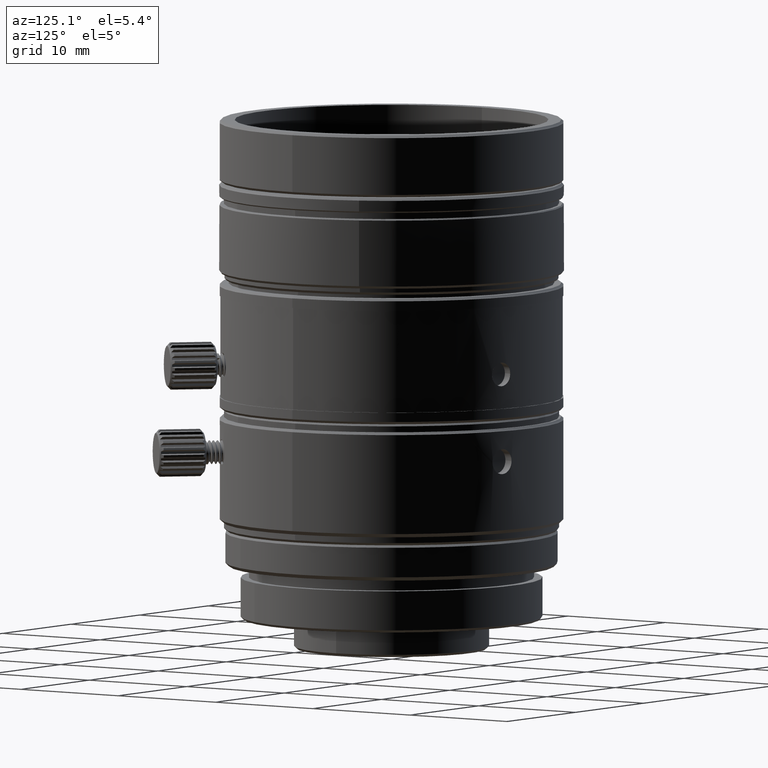
[diagram: clean part render]
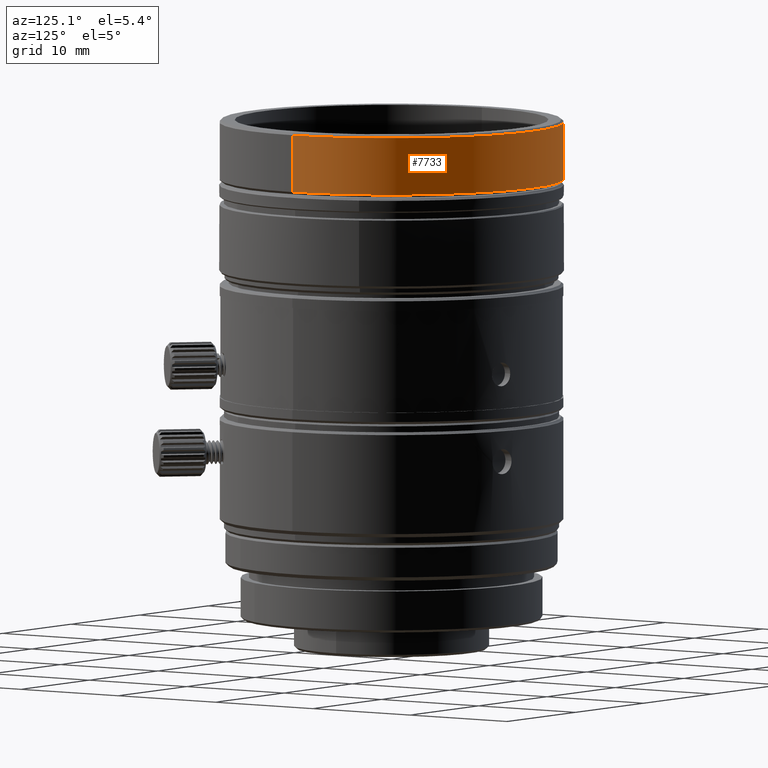
[diagram: same view with one face highlighted and labeled with its STEP entity id]
A machine part, auxiliary view. The second image highlights one B-rep face of the part: STEP entity #7733.
In plain terms, the highlighted cylindrical surface (partial cylindrical patch) has radius 14.5 mm, axis along (0, 0, 1).
Its self-contained STEP definition (entity closure, byte-faithful):
#155 = CARTESIAN_POINT ( 'NONE',  ( 14.50000000217000107, 0.000000000000000000, -2.489100753330000249 ) ) ;
#1035 = ORIENTED_EDGE ( 'NONE', *, *, #13114, .T. ) ;
#1956 = EDGE_CURVE ( 'NONE', #25904, #10361, #24820, .T. ) ;
#2705 = LINE ( 'NONE', #30847, #33269 ) ;
#4086 = CARTESIAN_POINT ( 'NONE',  ( 0.000000000000000000, 0.000000000000000000, 40.45004379446000087 ) ) ;
#5512 = CIRCLE ( 'NONE', #20863, 14.50000000217000107 ) ;
#6657 = DIRECTION ( 'NONE',  ( 0.000000000000000000, 0.000000000000000000, 1.000000000000000000 ) ) ;
#7733 = ADVANCED_FACE ( 'NONE', ( #21734 ), #24844, .T. ) ;
#7824 = AXIS2_PLACEMENT_3D ( 'NONE', #4086, #12744, #15146 ) ;
#7915 = CARTESIAN_POINT ( 'NONE',  ( 14.50000000199291605, 0.000000000000000000, 35.64684729244999772 ) ) ;
#7997 = CARTESIAN_POINT ( 'NONE',  ( -14.50000000217000107, 1.775737859029410716E-15, 40.45004379446000087 ) ) ;
#8255 = DIRECTION ( 'NONE',  ( 0.000000000000000000, 0.000000000000000000, 1.000000000000000000 ) ) ;
#8685 = ORIENTED_EDGE ( 'NONE', *, *, #18794, .T. ) ;
#8958 = EDGE_LOOP ( 'NONE', ( #22901, #1035, #8685, #12919 ) ) ;
#9008 = CIRCLE ( 'NONE', #7824, 14.50000000217000107 ) ;
#10361 = VERTEX_POINT ( 'NONE', #16228 ) ;
#11838 = EDGE_CURVE ( 'NONE', #25904, #32825, #5512, .T. ) ;
#12744 = DIRECTION ( 'NONE',  ( 0.000000000000000000, 0.000000000000000000, -1.000000000000000000 ) ) ;
#12919 = ORIENTED_EDGE ( 'NONE', *, *, #1956, .F. ) ;
#13114 = EDGE_CURVE ( 'NONE', #32825, #30156, #2705, .T. ) ;
#15146 = DIRECTION ( 'NONE',  ( -1.000000000000000000, 0.000000000000000000, 0.000000000000000000 ) ) ;
#16228 = CARTESIAN_POINT ( 'NONE',  ( 14.50000000217000107, 0.000000000000000000, 40.45004379446000087 ) ) ;
#18754 = VECTOR ( 'NONE', #8255, 1000.000000000000000 ) ;
#18794 = EDGE_CURVE ( 'NONE', #30156, #10361, #9008, .T. ) ;
#20863 = AXIS2_PLACEMENT_3D ( 'NONE', #31696, #6657, #28761 ) ;
#21541 = DIRECTION ( 'NONE',  ( 0.000000000000000000, 0.000000000000000000, 1.000000000000000000 ) ) ;
#21734 = FACE_OUTER_BOUND ( 'NONE', #8958, .T. ) ;
#22150 = AXIS2_PLACEMENT_3D ( 'NONE', #36055, #21541, #27247 ) ;
#22901 = ORIENTED_EDGE ( 'NONE', *, *, #11838, .T. ) ;
#24820 = LINE ( 'NONE', #155, #18754 ) ;
#24844 = CYLINDRICAL_SURFACE ( 'NONE', #22150, 14.50000000217000107 ) ;
#25313 = DIRECTION ( 'NONE',  ( 0.000000000000000000, 0.000000000000000000, 1.000000000000000000 ) ) ;
#25904 = VERTEX_POINT ( 'NONE', #7915 ) ;
#27247 = DIRECTION ( 'NONE',  ( 1.000000000000000000, 0.000000000000000000, 0.000000000000000000 ) ) ;
#28761 = DIRECTION ( 'NONE',  ( 1.000000000000000000, 0.000000000000000000, 0.000000000000000000 ) ) ;
#30156 = VERTEX_POINT ( 'NONE', #7997 ) ;
#30847 = CARTESIAN_POINT ( 'NONE',  ( -14.50000000217000107, 1.775737859029410716E-15, -2.489100753330000249 ) ) ;
#31696 = CARTESIAN_POINT ( 'NONE',  ( 0.000000000000000000, 0.000000000000000000, 35.64684729244999772 ) ) ;
#32825 = VERTEX_POINT ( 'NONE', #35554 ) ;
#33269 = VECTOR ( 'NONE', #25313, 1000.000000000000000 ) ;
#35554 = CARTESIAN_POINT ( 'NONE',  ( -14.50000000199291605, 1.775737859007723943E-15, 35.64684729244999772 ) ) ;
#36055 = CARTESIAN_POINT ( 'NONE',  ( 0.000000000000000000, 0.000000000000000000, -2.489100753330000249 ) ) ;